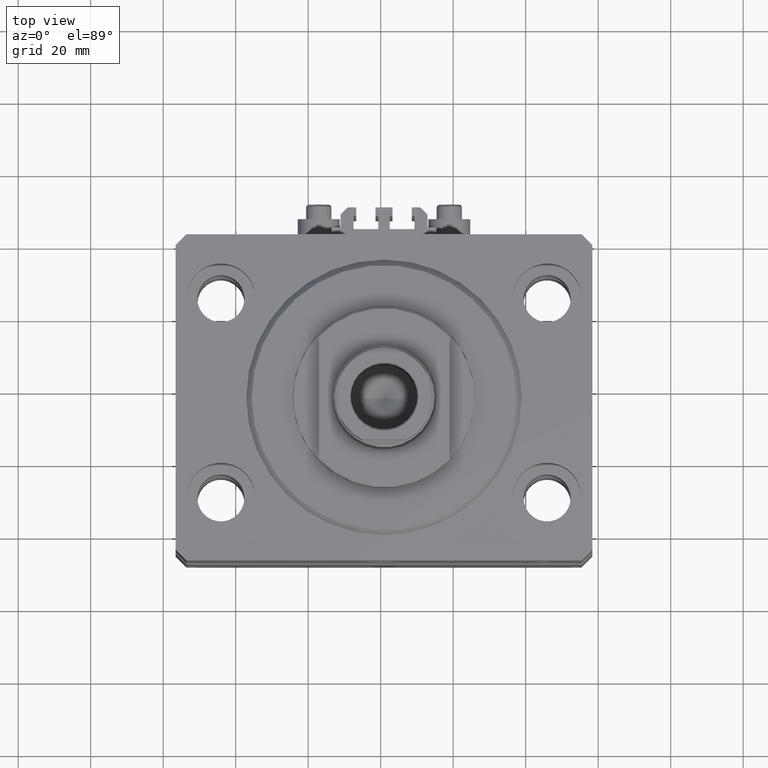
[diagram: clean part render]
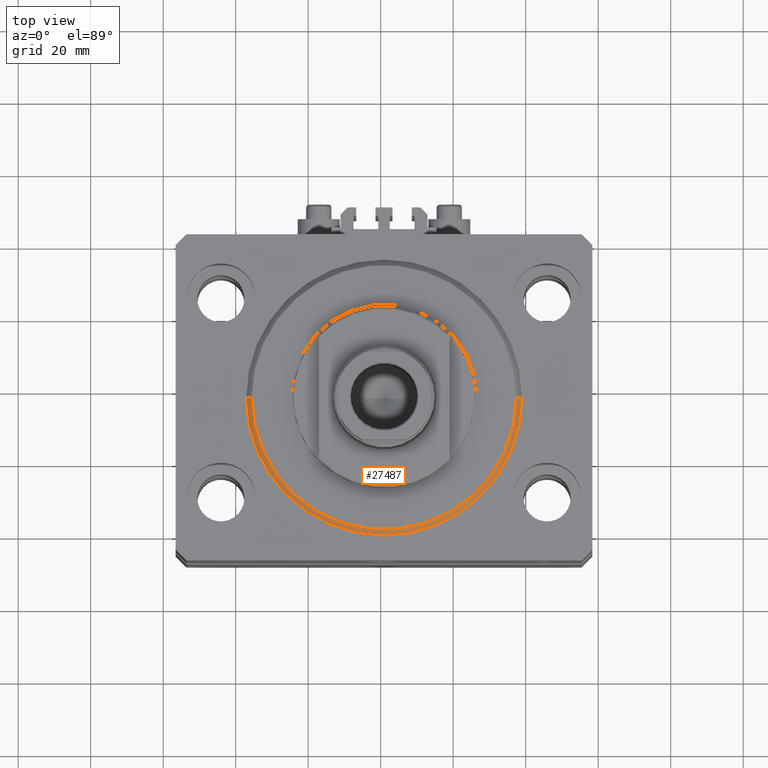
[diagram: same view with one face highlighted and labeled with its STEP entity id]
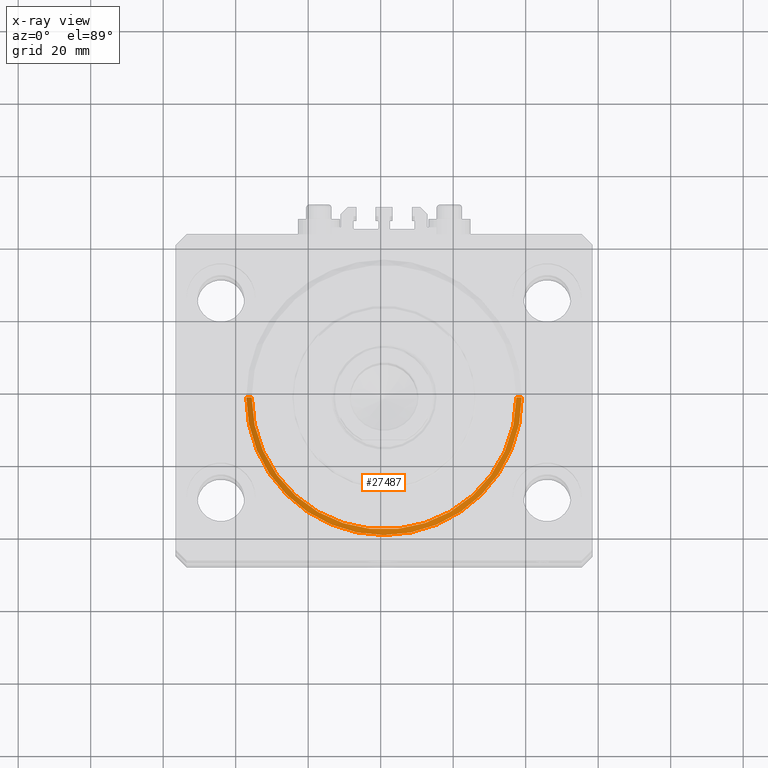
[diagram: x-ray of the same camera — body ghosted, the highlighted face saturated]
A machine part, top view. The second image highlights one B-rep face of the part: STEP entity #27487.
The next image is the same camera in x-ray: the body ghosted, the highlighted face saturated — about 0% of this face is hidden behind the body in this view.
In plain terms, the highlighted conical surface has half-angle 45 deg.
Its self-contained STEP definition (entity closure, byte-faithful):
#467 = CARTESIAN_POINT ( 'NONE',  ( 0.000000000000000000, 0.000000000000000000, 0.000000000000000000 ) ) ;
#1111 = CARTESIAN_POINT ( 'NONE',  ( -38.00000000000000000, 0.000000000000000000, 1.499999999999994449 ) ) ;
#1595 = DIRECTION ( 'NONE',  ( -0.000000000000000000, -0.000000000000000000, 1.000000000000000000 ) ) ;
#7315 = CARTESIAN_POINT ( 'NONE',  ( 38.00000000000000000, 0.000000000000000000, 1.499999999999994449 ) ) ;
#9544 = EDGE_CURVE ( 'NONE', #21812, #42792, #34597, .T. ) ;
#10782 = AXIS2_PLACEMENT_3D ( 'NONE', #36421, #1595, #13764 ) ;
#10863 = DIRECTION ( 'NONE',  ( -0.7071067811865491270, 8.659560562354953812E-17, 0.7071067811865459074 ) ) ;
#11797 = LINE ( 'NONE', #7315, #38182 ) ;
#12290 = AXIS2_PLACEMENT_3D ( 'NONE', #46677, #21271, #16568 ) ;
#13565 = FACE_OUTER_BOUND ( 'NONE', #14910, .T. ) ;
#13764 = DIRECTION ( 'NONE',  ( 1.000000000000000000, 0.000000000000000000, 0.000000000000000000 ) ) ;
#14163 = ORIENTED_EDGE ( 'NONE', *, *, #9544, .F. ) ;
#14910 = EDGE_LOOP ( 'NONE', ( #26885, #33242, #19008, #14163 ) ) ;
#14942 = CARTESIAN_POINT ( 'NONE',  ( 38.00000000000000000, 4.653657836759941941E-15, 1.499999999999994449 ) ) ;
#15707 = EDGE_CURVE ( 'NONE', #33066, #42792, #11797, .T. ) ;
#16568 = DIRECTION ( 'NONE',  ( 1.000000000000000000, 0.000000000000000000, 0.000000000000000000 ) ) ;
#19008 = ORIENTED_EDGE ( 'NONE', *, *, #15707, .T. ) ;
#21271 = DIRECTION ( 'NONE',  ( -0.000000000000000000, -0.000000000000000000, 1.000000000000000000 ) ) ;
#21307 = CARTESIAN_POINT ( 'NONE',  ( -38.00000000000000000, 4.653657836759941941E-15, 1.499999999999994449 ) ) ;
#21812 = VERTEX_POINT ( 'NONE', #1111 ) ;
#26016 = LINE ( 'NONE', #21307, #47506 ) ;
#26885 = ORIENTED_EDGE ( 'NONE', *, *, #38972, .F. ) ;
#27314 = CARTESIAN_POINT ( 'NONE',  ( 36.50000000000000000, 0.000000000000000000, 0.000000000000000000 ) ) ;
#27487 = ADVANCED_FACE ( 'NONE', ( #13565 ), #44013, .T. ) ;
#33066 = VERTEX_POINT ( 'NONE', #27314 ) ;
#33195 = AXIS2_PLACEMENT_3D ( 'NONE', #467, #45489, #38043 ) ;
#33242 = ORIENTED_EDGE ( 'NONE', *, *, #38912, .F. ) ;
#34597 = CIRCLE ( 'NONE', #10782, 38.00000000000000000 ) ;
#36421 = CARTESIAN_POINT ( 'NONE',  ( 0.000000000000000000, 0.000000000000000000, 1.499999999999994449 ) ) ;
#37671 = DIRECTION ( 'NONE',  ( 0.7071067811865491270, 0.000000000000000000, 0.7071067811865459074 ) ) ;
#38043 = DIRECTION ( 'NONE',  ( 1.000000000000000000, 0.000000000000000000, 0.000000000000000000 ) ) ;
#38182 = VECTOR ( 'NONE', #37671, 1000.000000000000114 ) ;
#38912 = EDGE_CURVE ( 'NONE', #33066, #41831, #43515, .T. ) ;
#38972 = EDGE_CURVE ( 'NONE', #41831, #21812, #26016, .T. ) ;
#39717 = CARTESIAN_POINT ( 'NONE',  ( -36.50000000000000000, 4.561809326823889791E-15, 0.000000000000000000 ) ) ;
#41831 = VERTEX_POINT ( 'NONE', #39717 ) ;
#42792 = VERTEX_POINT ( 'NONE', #14942 ) ;
#43515 = CIRCLE ( 'NONE', #33195, 36.50000000000000000 ) ;
#44013 = CONICAL_SURFACE ( 'NONE', #12290, 38.00000000000000000, 0.7853981633974506105 ) ;
#45489 = DIRECTION ( 'NONE',  ( -0.000000000000000000, -0.000000000000000000, -1.000000000000000000 ) ) ;
#46677 = CARTESIAN_POINT ( 'NONE',  ( 0.000000000000000000, 0.000000000000000000, 1.499999999999994449 ) ) ;
#47506 = VECTOR ( 'NONE', #10863, 1000.000000000000114 ) ;